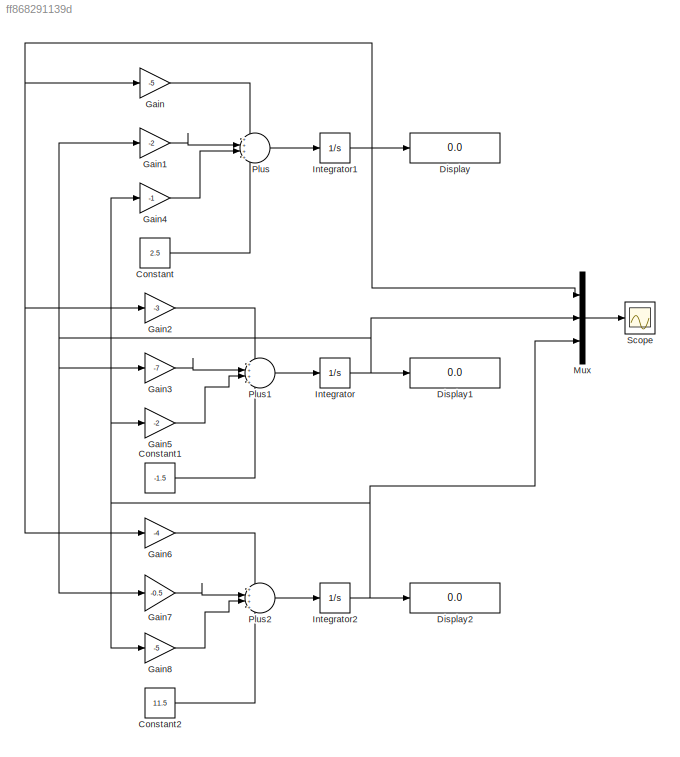
MODEL slx_ff868291139d
KIND model
CONFIG AbsTol = auto
CONFIG EnableMultiTasking = off
CONFIG FixedStep = auto
CONFIG MaxStep = auto
CONFIG MinStep = auto
CONFIG RelTol = 1e-3
CONFIG SampleTimeConstraint = Unconstrained
CONFIG SolverName = VariableStepAuto
CONFIG StartTime = 0.0
CONFIG StopTime = 10.0
BLOCK [Constant] Constant
  Value = 2.5
BLOCK [Constant] Constant1
  Value = -1.5
BLOCK [Constant] Constant2
  Value = 11.5
BLOCK [Display] Display
  Decimation = 1
BLOCK [Display] Display1
  Decimation = 1
BLOCK [Display] Display2
  Decimation = 1
BLOCK [Gain] Gain
  Gain = -5
BLOCK [Gain] Gain1
  Gain = -2
BLOCK [Gain] Gain2
  Gain = -3
BLOCK [Gain] Gain3
  Gain = -7
BLOCK [Gain] Gain4
  Gain = -1
BLOCK [Gain] Gain5
  Gain = -2
BLOCK [Gain] Gain6
  Gain = -4
BLOCK [Gain] Gain7
  Gain = -0.5
BLOCK [Gain] Gain8
  Gain = -5
BLOCK [Integrator] Integrator
BLOCK [Integrator] Integrator1
BLOCK [Integrator] Integrator2
BLOCK [Mux] Mux
  DisplayOption = bar
  Inputs = 3
BLOCK [Sum] Plus
  Inputs = ++++
BLOCK [Sum] Plus1
  Inputs = ++++
BLOCK [Sum] Plus2
  Inputs = ++++
BLOCK [Scope] Scope
  Floating = off
  NumInputPorts = 1
  ScopeSpecificationString = Simulink.scopes.TimeScopeBlockCfg('CurrentConfiguration', extmgr.ConfigurationSet(extmgr.Configuration('Core','General UI',true),extmgr.Configuration('Core','Source UI',true),extmgr.Configuration('Sources','WiredSimulink',true),extmgr.Configuration('Visuals','Time Domain',true,'SerializedDisplays',{struct('MinYLimReal','-1.37834','MaxYLimReal','2.40338','YLabelReal','','MinYLimMag','0.00000','MaxY...<+1384ch>
LINE Constant1:1 -> Plus1:4
LINE Constant2:1 -> Plus2:4
LINE Constant:1 -> Plus:4
LINE Gain1:1 -> Plus:2
LINE Gain2:1 -> Plus1:1
LINE Gain3:1 -> Plus1:2
LINE Gain4:1 -> Plus:3
LINE Gain5:1 -> Plus1:3
LINE Gain6:1 -> Plus2:1
LINE Gain7:1 -> Plus2:2
LINE Gain8:1 -> Plus2:3
LINE Gain:1 -> Plus:1
NET Integrator1:1 -> Display:1, Gain2:1, Gain6:1, Gain:1, Mux:1
NET Integrator2:1 -> Display2:1, Gain4:1, Gain5:1, Gain8:1, Mux:3
NET Integrator:1 -> Display1:1, Gain1:1, Gain3:1, Gain7:1, Mux:2
LINE Mux:1 -> Scope:1
LINE Plus1:1 -> Integrator:1
LINE Plus2:1 -> Integrator2:1
LINE Plus:1 -> Integrator1:1
note: NET lines group one-source signal fan-out (src -> all destinations, sorted); 1:1 wires keep LINE
